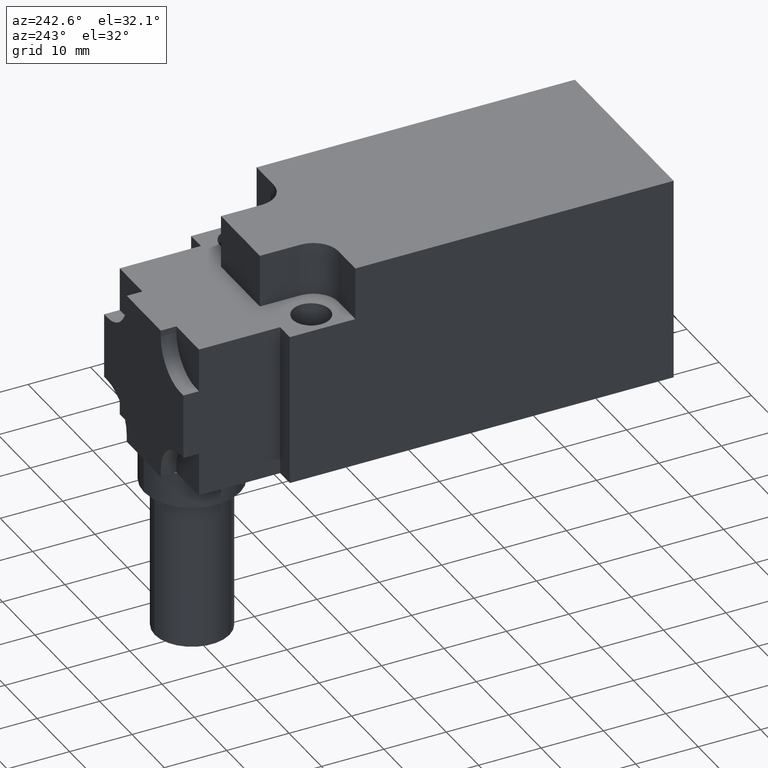
[diagram: clean part render]
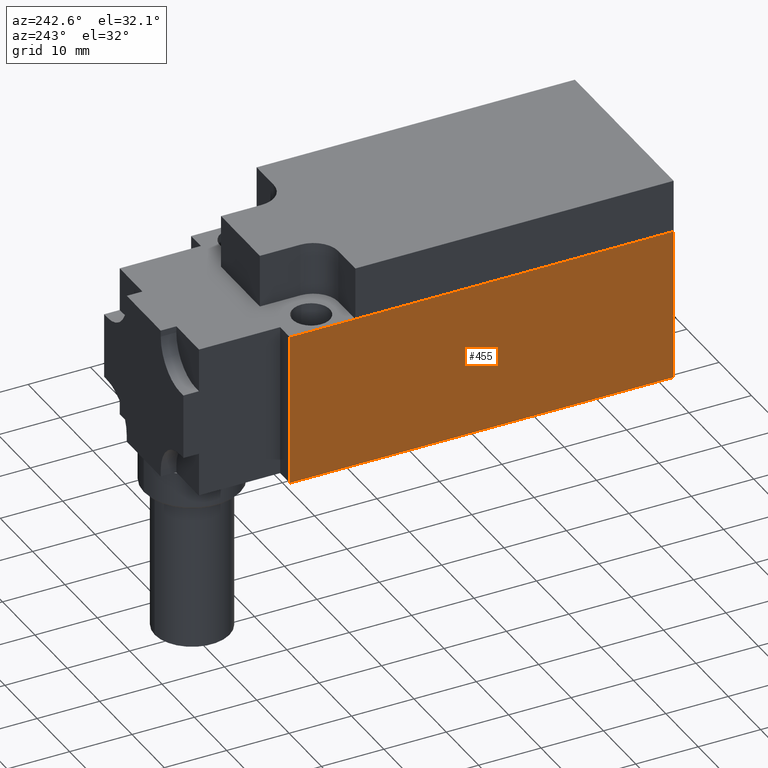
[diagram: same view with one face highlighted and labeled with its STEP entity id]
A machine part, auxiliary view. The second image highlights one B-rep face of the part: STEP entity #455.
In plain terms, the highlighted planar face has unit normal (-1, 0, 0).
Its self-contained STEP definition (entity closure, byte-faithful):
#399=CARTESIAN_POINT('',(-15.249999999938993,-7.749999999969077,0.0));
#400=VERTEX_POINT('',#399);
#407=CARTESIAN_POINT('',(-15.249999999938993,-7.749999999969077,24.499999999902048));
#408=VERTEX_POINT('',#407);
#409=CARTESIAN_POINT('',(-15.249999999938993,-7.749999999969077,0.0));
#410=DIRECTION('',(0.0,0.0,1.0));
#411=VECTOR('',#410,24.499999999902048);
#412=LINE('',#409,#411);
#413=EDGE_CURVE('',#400,#408,#412,.T.);
#425=CARTESIAN_POINT('',(-15.249999999938993,-7.749999999969077,0.0));
#426=DIRECTION('',(-1.0,0.0,0.0));
#427=DIRECTION('',(0.0,-1.0,0.0));
#428=AXIS2_PLACEMENT_3D('',#425,#426,#427);
#429=PLANE('',#428);
#430=CARTESIAN_POINT('',(-15.249999999938993,-69.249999999723059,0.0));
#431=VERTEX_POINT('',#430);
#432=CARTESIAN_POINT('',(-15.249999999938993,-7.749999999969077,0.0));
#433=DIRECTION('',(0.0,-1.0,0.0));
#434=VECTOR('',#433,61.499999999753982);
#435=LINE('',#432,#434);
#436=EDGE_CURVE('',#400,#431,#435,.T.);
#437=ORIENTED_EDGE('',*,*,#436,.T.);
#438=CARTESIAN_POINT('',(-15.249999999938993,-69.249999999723059,24.499999999902048));
#439=VERTEX_POINT('',#438);
#440=CARTESIAN_POINT('',(-15.249999999938993,-69.249999999723059,0.0));
#441=DIRECTION('',(0.0,0.0,1.0));
#442=VECTOR('',#441,24.499999999902048);
#443=LINE('',#440,#442);
#444=EDGE_CURVE('',#431,#439,#443,.T.);
#445=ORIENTED_EDGE('',*,*,#444,.T.);
#446=CARTESIAN_POINT('',(-15.249999999938993,-7.749999999969077,24.499999999902048));
#447=DIRECTION('',(0.0,-1.0,0.0));
#448=VECTOR('',#447,61.499999999753982);
#449=LINE('',#446,#448);
#450=EDGE_CURVE('',#408,#439,#449,.T.);
#451=ORIENTED_EDGE('',*,*,#450,.F.);
#452=ORIENTED_EDGE('',*,*,#413,.F.);
#453=EDGE_LOOP('',(#437,#445,#451,#452));
#454=FACE_OUTER_BOUND('',#453,.T.);
#455=ADVANCED_FACE('',(#454),#429,.T.);